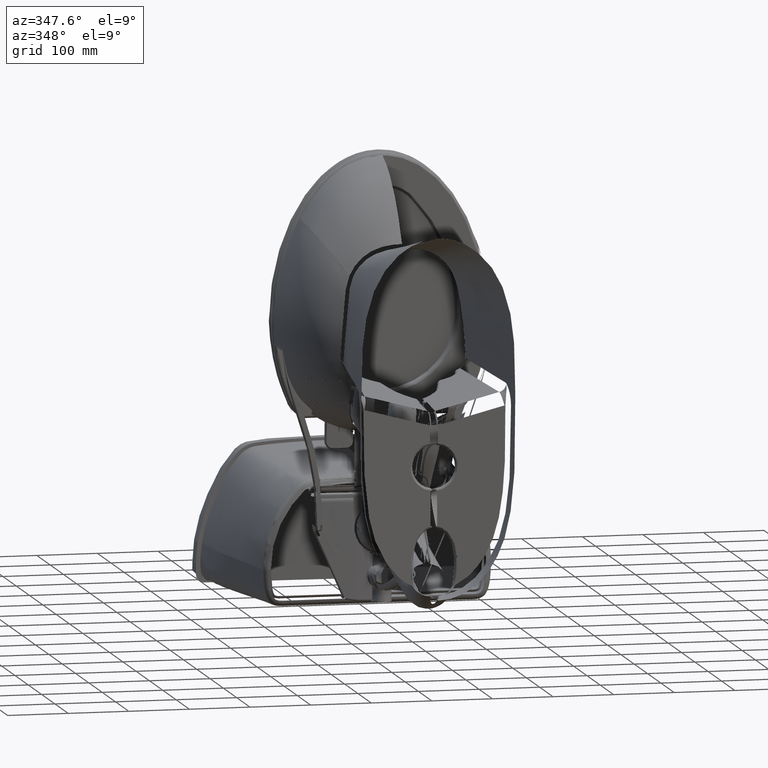
[diagram: clean part render]
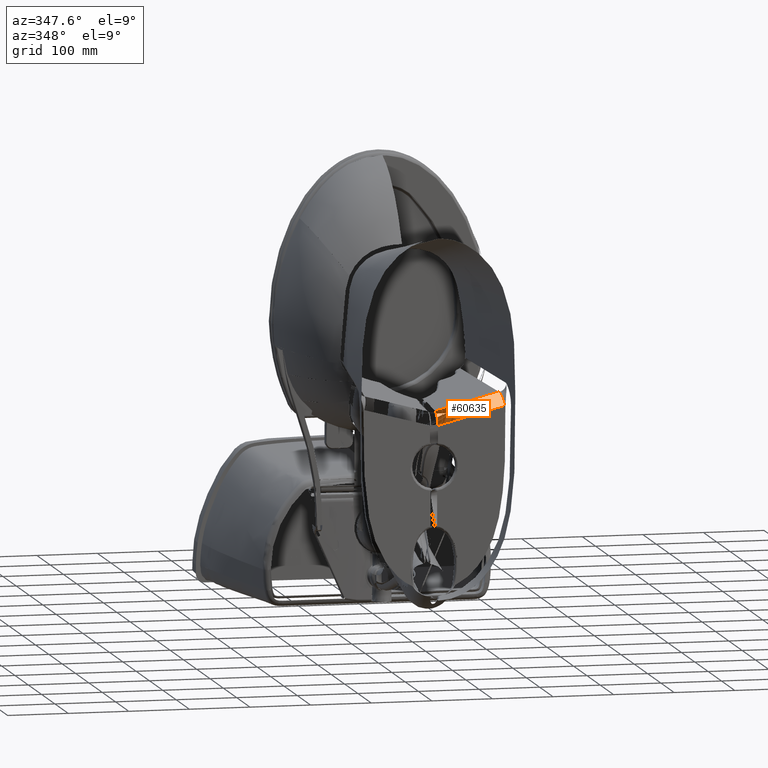
[diagram: same view with one face highlighted and labeled with its STEP entity id]
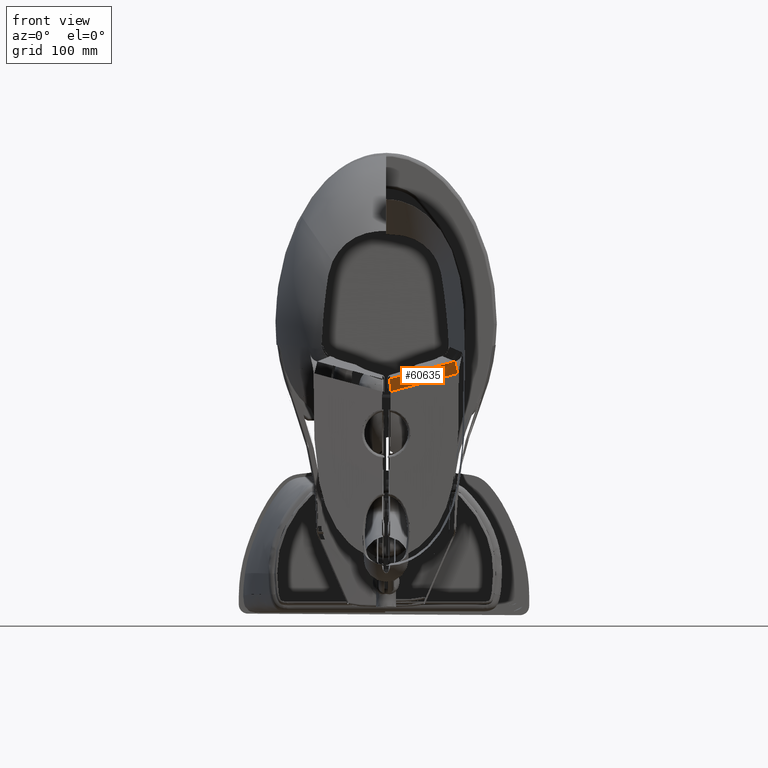
[diagram: same view with one face highlighted and labeled with its STEP entity id]
A machine part, auxiliary view. The second image highlights one B-rep face of the part: STEP entity #60635.
A second angle (front view) of the same face is appended — the face is thin or edge-on in the first view.
In plain terms, the highlighted cylindrical surface (edge-blend (fillet) strip) has radius 20 mm, axis along (0.965, -0.0334, 0.2602).
Its self-contained STEP definition (entity closure, byte-faithful):
#3001 = CARTESIAN_POINT ( 'NONE',  ( 0.2461273994984660200, 2.329649894933846000, 1.991676102073882500 ) ) ;
#6301 = CARTESIAN_POINT ( 'NONE',  ( 1.620727221030181700, 1.883766499635223500, 2.224648355913774600 ) ) ;
#8196 = VECTOR ( 'NONE', #49925, 39.37007874015748900 ) ;
#14257 = CARTESIAN_POINT ( 'NONE',  ( 0.2661395770578218200, 2.911364814505790200, 1.556209633475935900 ) ) ;
#16192 = CARTESIAN_POINT ( 'NONE',  ( 0.2462357668653012400, 2.333519891494962200, 1.983763417807504300 ) ) ;
#17244 = CARTESIAN_POINT ( 'NONE',  ( 0.1858968400292908600, 3.077030397021891100, 1.546590771446196600 ) ) ;
#18758 = CARTESIAN_POINT ( 'NONE',  ( 0.2467284664753013300, 2.350775528109363000, 1.950884916694421300 ) ) ;
#22305 = DIRECTION ( 'NONE',  ( 0.9649702345763236900, -0.2602243229940869300, -0.03340281580920998600 ) ) ;
#27059 = CARTESIAN_POINT ( 'NONE',  ( 4.539140578386279000, 1.852309997812218600, 1.395901565178659700 ) ) ;
#28675 = CARTESIAN_POINT ( 'NONE',  ( 0.2530705548183445100, 2.547202254728262400, 1.719842072627137700 ) ) ;
#29331 = CARTESIAN_POINT ( 'NONE',  ( 0.2674803986478697100, 2.947401078551326500, 1.550580541865619600 ) ) ;
#29990 = CARTESIAN_POINT ( 'NONE',  ( 0.2518281938175964100, 2.510311743911460200, 1.751223124557947000 ) ) ;
#30631 = CARTESIAN_POINT ( 'NONE',  ( 0.2606052306825258900, 2.760652517949361500, 1.598011064542834000 ) ) ;
#31245 = CARTESIAN_POINT ( 'NONE',  ( 0.2446514998045885600, 2.254853965492902300, 2.272281952777284200 ) ) ;
#35421 = B_SPLINE_CURVE_WITH_KNOTS ( 'NONE', 3,
 ( #114900, #102405, #176491, #71594, #87999, #177141, #41493, #162089, #86713, #132581, #40822, #190269, #100454, #145726, #70935, #147661, #27059, #175850 ),
 .UNSPECIFIED., .F., .F.,
 ( 4, 2, 2, 2, 2, 2, 2, 2, 4 ),
 ( 0.0000000000000000000, 0.1250000000000000000, 0.2500000000000000000, 0.3750000000000000000, 0.5000000000000000000, 0.6250000000000000000, 0.7500000000000000000, 0.8750000000000000000, 1.000000000000000000 ),
 .UNSPECIFIED. ) ;
#39239 = ORIENTED_EDGE ( 'NONE', *, *, #54953, .T. ) ;
#40822 = CARTESIAN_POINT ( 'NONE',  ( 4.437318390541936000, 1.455450199878354200, 1.546008873865484900 ) ) ;
#41493 = CARTESIAN_POINT ( 'NONE',  ( 4.392079011584827200, 1.260240182478689100, 1.759811722821557100 ) ) ;
#42893 = EDGE_CURVE ( 'NONE', #152187, #132867, #35421, .T. ) ;
#43727 = CARTESIAN_POINT ( 'NONE',  ( 0.2659610878828113100, 2.906557741241266000, 1.557080675161472300 ) ) ;
#45047 = CARTESIAN_POINT ( 'NONE',  ( 0.2658725632056522800, 2.904173530053156100, 1.557522040182333100 ) ) ;
#45678 = CARTESIAN_POINT ( 'NONE',  ( 0.2516492983743436300, 2.504979595623466600, 1.756087213700494100 ) ) ;
#45692 = EDGE_CURVE ( 'NONE', #167730, #148203, #168641, .T. ) ;
#46319 = CARTESIAN_POINT ( 'NONE',  ( 0.2463668478117079500, 2.338168486555543900, 1.974505558472821100 ) ) ;
#49846 = CARTESIAN_POINT ( 'NONE',  ( 0.2446514998045885600, 2.254853965492902300, 2.272281952777284200 ) ) ;
#49925 = DIRECTION ( 'NONE',  ( -0.9649702345785208200, 0.2602243229888290800, 0.03340281578669707800 ) ) ;
#50213 = CARTESIAN_POINT ( 'NONE',  ( 0.2446514998045885600, 2.254853965492902300, 2.272281952777284200 ) ) ;
#51842 = ORIENTED_EDGE ( 'NONE', *, *, #45692, .T. ) ;
#54953 = EDGE_CURVE ( 'NONE', #148203, #152187, #126418, .T. ) ;
#58098 = CYLINDRICAL_SURFACE ( 'NONE', #186901, 0.7874015739841860900 ) ;
#58786 = CARTESIAN_POINT ( 'NONE',  ( 0.2614462011199396600, 2.783853293818570900, 1.589488751477840200 ) ) ;
#59440 = CARTESIAN_POINT ( 'NONE',  ( 0.2715045671665150500, 3.053944491263394800, 1.543627427047566900 ) ) ;
#60099 = CARTESIAN_POINT ( 'NONE',  ( 0.2607806179347341200, 2.765498621288431800, 1.596161703823544900 ) ) ;
#60635 = ADVANCED_FACE ( 'NONE', ( #69740 ), #58098, .F. ) ;
#60761 = CARTESIAN_POINT ( 'NONE',  ( 0.2665023936835119700, 2.921133574563538700, 1.554516507832758300 ) ) ;
#69740 = FACE_OUTER_BOUND ( 'NONE', #106199, .T. ) ;
#70935 = CARTESIAN_POINT ( 'NONE',  ( 4.502122276569008500, 1.711940505057641100, 1.419999389190079300 ) ) ;
#71594 = CARTESIAN_POINT ( 'NONE',  ( 4.376004544396209000, 1.177875109034284900, 1.937060179784707300 ) ) ;
#73206 = CARTESIAN_POINT ( 'NONE',  ( 0.2658096204787917000, 2.902478343597394900, 1.557839607860446600 ) ) ;
#73864 = CARTESIAN_POINT ( 'NONE',  ( 0.2517027462496657700, 2.506572800142686600, 1.754625457680301300 ) ) ;
#74517 = CARTESIAN_POINT ( 'NONE',  ( 0.2527583378811753500, 2.537965933069755500, 1.727318426052833800 ) ) ;
#75163 = CARTESIAN_POINT ( 'NONE',  ( 0.2658347772225884700, 2.903155866096398500, 1.557712419660848900 ) ) ;
#86713 = CARTESIAN_POINT ( 'NONE',  ( 4.411787528123163300, 1.348253154000866900, 1.643536422317142500 ) ) ;
#87999 = CARTESIAN_POINT ( 'NONE',  ( 4.378878573362121600, 1.194473414451656400, 1.890789335189868400 ) ) ;
#88323 = CARTESIAN_POINT ( 'NONE',  ( 0.2657999931154291800, 2.902219060460386100, 1.557888399705174200 ) ) ;
#88961 = CARTESIAN_POINT ( 'NONE',  ( 0.2540398487380442500, 2.575703750121907600, 1.697828748272036700 ) ) ;
#89338 = CARTESIAN_POINT ( 'NONE',  ( 4.551890923300454100, 1.899649153766535000, 1.395460207141263000 ) ) ;
#90242 = CARTESIAN_POINT ( 'NONE',  ( 0.2569416248027425200, 2.659087870139900100, 1.643493780035647900 ) ) ;
#93451 = CARTESIAN_POINT ( 'NONE',  ( 0.2492295662678956900, 2.432217828248031600, 1.830090112504633600 ) ) ;
#95732 = DIRECTION ( 'NONE',  ( 0.2603696169865160100, 0.9655090173324613100, 0.0000000000000000000 ) ) ;
#100454 = CARTESIAN_POINT ( 'NONE',  ( 4.467783295913931400, 1.578101740520729600, 1.470622247687997800 ) ) ;
#102405 = CARTESIAN_POINT ( 'NONE',  ( 4.372160587556680700, 1.145205678051685300, 2.080491649702526300 ) ) ;
#103361 = CARTESIAN_POINT ( 'NONE',  ( 0.2638493671738129700, 2.849585367834606600, 1.569206163865125600 ) ) ;
#104678 = CARTESIAN_POINT ( 'NONE',  ( 0.2516137359206636600, 2.503919502569974800, 1.757062511680534300 ) ) ;
#105323 = CARTESIAN_POINT ( 'NONE',  ( 0.2586117191363378500, 2.705528173863539300, 1.619549255786769400 ) ) ;
#106023 = ORIENTED_EDGE ( 'NONE', *, *, #181790, .T. ) ;
#106199 = EDGE_LOOP ( 'NONE', ( #51842, #39239, #191208, #106023 ) ) ;
#106597 = CARTESIAN_POINT ( 'NONE',  ( 0.2461809667813109300, 2.331565294725413300, 1.987740977604767000 ) ) ;
#110175 = CARTESIAN_POINT ( 'NONE',  ( 0.2730620928390260500, 3.060870274793580300, 2.331446687570155600 ) ) ;
#114900 = CARTESIAN_POINT ( 'NONE',  ( 4.372878663473864300, 1.141591568004544100, 2.129381161008676100 ) ) ;
#118461 = CARTESIAN_POINT ( 'NONE',  ( 0.2604807508345513600, 2.757211426207486900, 1.599342785560669700 ) ) ;
#120396 = CARTESIAN_POINT ( 'NONE',  ( 0.2693671547605401800, 2.997691056690272100, 1.545222916539448400 ) ) ;
#120500 = CARTESIAN_POINT ( 'NONE',  ( 4.372878663473864300, 1.141591568004544100, 2.129381161008676100 ) ) ;
#121046 = CARTESIAN_POINT ( 'NONE',  ( 0.2449288220487411100, 2.286655337808147300, 2.081101744560149800 ) ) ;
#122975 = CARTESIAN_POINT ( 'NONE',  ( 0.2474518624548463500, 2.375245577571708700, 1.909554585430518300 ) ) ;
#126418 = B_SPLINE_CURVE_WITH_KNOTS ( 'NONE', 3,
 ( #50213, #6301, #127549, #187204 ),
 .UNSPECIFIED., .F., .F.,
 ( 4, 4 ),
 ( 0.0000000000000000000, 1.000000000000000000 ),
 .UNSPECIFIED. ) ;
#127549 = CARTESIAN_POINT ( 'NONE',  ( 2.996802942254895600, 1.512679033805334000, 2.177014758657516600 ) ) ;
#132581 = CARTESIAN_POINT ( 'NONE',  ( 4.428189410824301400, 1.417709384690087900, 1.576291665067505400 ) ) ;
#132867 = VERTEX_POINT ( 'NONE', #89338 ) ;
#134851 = CARTESIAN_POINT ( 'NONE',  ( 0.2515978531659346400, 2.503446036497839300, 1.757499162079460900 ) ) ;
#135505 = CARTESIAN_POINT ( 'NONE',  ( 0.2604559260494773200, 2.756525041879559300, 1.599610083662159600 ) ) ;
#136134 = CARTESIAN_POINT ( 'NONE',  ( 0.2464848137162662400, 2.342303755987519500, 1.966611805622093400 ) ) ;
#137398 = CARTESIAN_POINT ( 'NONE',  ( 0.2444314738985268500, 2.261621684607743300, 2.176355197224147300 ) ) ;
#145726 = CARTESIAN_POINT ( 'NONE',  ( 4.490286895338740300, 1.666249290855505500, 1.434034756681306300 ) ) ;
#147661 = CARTESIAN_POINT ( 'NONE',  ( 4.526549365529225700, 1.804971800876870500, 1.400932600305120600 ) ) ;
#148203 = VERTEX_POINT ( 'NONE', #49846 ) ;
#148237 = CARTESIAN_POINT ( 'NONE',  ( 0.2715045671665150500, 3.053944491263394800, 1.543627427047566900 ) ) ;
#148626 = CARTESIAN_POINT ( 'NONE',  ( 0.2620773789004090500, 2.801205982864193100, 1.583573285771741300 ) ) ;
#149281 = CARTESIAN_POINT ( 'NONE',  ( 0.2679372879076817300, 2.959624480529468500, 1.549053619413418100 ) ) ;
#150578 = CARTESIAN_POINT ( 'NONE',  ( 0.2605180223899777900, 2.758241890126340100, 1.598942298074209600 ) ) ;
#151211 = CARTESIAN_POINT ( 'NONE',  ( 0.2461447366206618900, 2.330270594922684500, 1.990394831916920500 ) ) ;
#152187 = VERTEX_POINT ( 'NONE', #120500 ) ;
#162089 = CARTESIAN_POINT ( 'NONE',  ( 4.404514957432967400, 1.316539145583419900, 1.680497026078436700 ) ) ;
#163066 = CARTESIAN_POINT ( 'NONE',  ( 0.2668236491670509800, 2.929771839937680400, 1.553156806820563700 ) ) ;
#163703 = CARTESIAN_POINT ( 'NONE',  ( 0.2704009139412457700, 3.024936927698918900, 1.543665630363400700 ) ) ;
#164355 = CARTESIAN_POINT ( 'NONE',  ( 0.2611353157998936900, 2.775290207403367800, 1.592516671621788900 ) ) ;
#165000 = CARTESIAN_POINT ( 'NONE',  ( 0.2604453498005505100, 2.756232602563325700, 1.599724157564349000 ) ) ;
#165636 = CARTESIAN_POINT ( 'NONE',  ( 0.2503254251688968300, 2.465514466143213100, 1.792588375171666200 ) ) ;
#167730 = VERTEX_POINT ( 'NONE', #148237 ) ;
#168641 = B_SPLINE_CURVE_WITH_KNOTS ( 'NONE', 3,
 ( #59440, #163703, #120396, #149281, #29331, #163066, #60761, #14257, #43727, #45047, #75163, #73206, #88323, #193185, #103361, #178767, #148626, #58786, #164355, #60099, #30631, #150578, #118461, #135505, #165000, #105323, #90242, #194526, #88961, #28675, #74517, #193863, #179415, #29990, #73864, #45678, #104678, #134851, #165636, #93451, #183906, #122975, #168863, #18758, #136134, #46319, #16192, #106597, #151211, #3001, #121046, #137398, #31245 ),
 .UNSPECIFIED., .F., .F.,
 ( 4, 2, 2, 1, 1, 1, 1, 2, 2, 2, 2, 1, 1, 1, 1, 2, 2, 2, 2, 2, 1, 1, 1, 2, 2, 2, 2, 2, 1, 1, 2, 2, 4 ),
 ( 0.0000000000000000000, 0.06250000000010504100, 0.09375000000015688800, 0.1093750000001828800, 0.1171875000001958200, 0.1210937500002022800, 0.1230468750002055700, 0.1240234375002065400, 0.1250000000002075000, 0.1875000000002041100, 0.2187500000002024500, 0.2343750000002015900, 0.2421875000002011700, 0.2460937500002004000, 0.2480468750001992300, 0.2490234375001987600, 0.2500000000001982900, 0.3750000000001440500, 0.4375000000001177400, 0.4687500000001040300, 0.4843750000000971400, 0.4921875000000934300, 0.4960937500000924300, 0.4980468750000921500, 0.5000000000000918200, 0.6250000000000848200, 0.6875000000000810500, 0.7187500000000790500, 0.7343750000000779400, 0.7421875000000771600, 0.7460937500000764900, 0.7500000000000758300, 1.000000000000000000 ),
 .UNSPECIFIED. ) ;
#168863 = CARTESIAN_POINT ( 'NONE',  ( 0.2469012077750379900, 2.356691732451837100, 1.940481126922403400 ) ) ;
#175850 = CARTESIAN_POINT ( 'NONE',  ( 4.551890923300454100, 1.899649153766535000, 1.395460207141263000 ) ) ;
#176491 = CARTESIAN_POINT ( 'NONE',  ( 4.372645517461951800, 1.153240991309575800, 2.031912297827685800 ) ) ;
#177141 = CARTESIAN_POINT ( 'NONE',  ( 4.386915888375794400, 1.235656368326856700, 1.802164208996767800 ) ) ;
#178767 = CARTESIAN_POINT ( 'NONE',  ( 0.2625107455645271900, 2.813076617438675400, 1.579816727316076800 ) ) ;
#179415 = CARTESIAN_POINT ( 'NONE',  ( 0.2520820832688595600, 2.517875589121904700, 1.744452939487115300 ) ) ;
#181790 = EDGE_CURVE ( 'NONE', #132867, #167730, #191205, .T. ) ;
#183906 = CARTESIAN_POINT ( 'NONE',  ( 0.2478624077641468400, 2.388689229049183500, 1.889316406759851400 ) ) ;
#186901 = AXIS2_PLACEMENT_3D ( 'NONE', #110175, #22305, #95732 ) ;
#187204 = CARTESIAN_POINT ( 'NONE',  ( 4.372878663473864300, 1.141591568004544100, 2.129381161008676100 ) ) ;
#190269 = CARTESIAN_POINT ( 'NONE',  ( 4.457115533625048100, 1.535647190131901300, 1.493173629990982600 ) ) ;
#191205 = LINE ( 'NONE', #17244, #8196 ) ;
#191208 = ORIENTED_EDGE ( 'NONE', *, *, #42893, .T. ) ;
#193185 = CARTESIAN_POINT ( 'NONE',  ( 0.2647938856826612100, 2.875123213821498600, 1.563010240978271300 ) ) ;
#193863 = CARTESIAN_POINT ( 'NONE',  ( 0.2523050069759609200, 2.524506540562751600, 1.738711642654668700 ) ) ;
#194526 = CARTESIAN_POINT ( 'NONE',  ( 0.2547299077805620400, 2.595762791809413700, 1.683706885157354700 ) ) ;